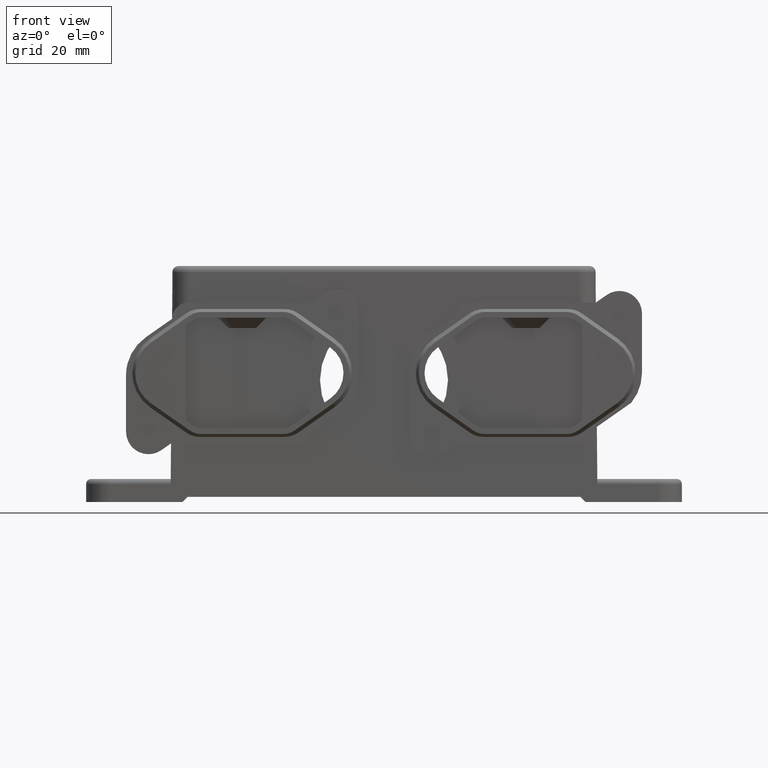
[diagram: clean part render]
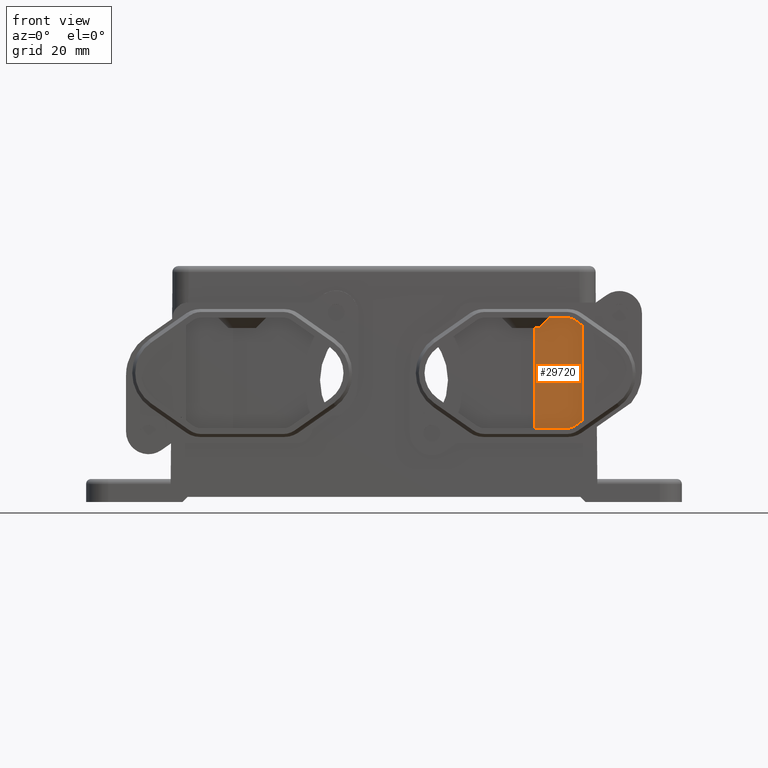
[diagram: same view with one face highlighted and labeled with its STEP entity id]
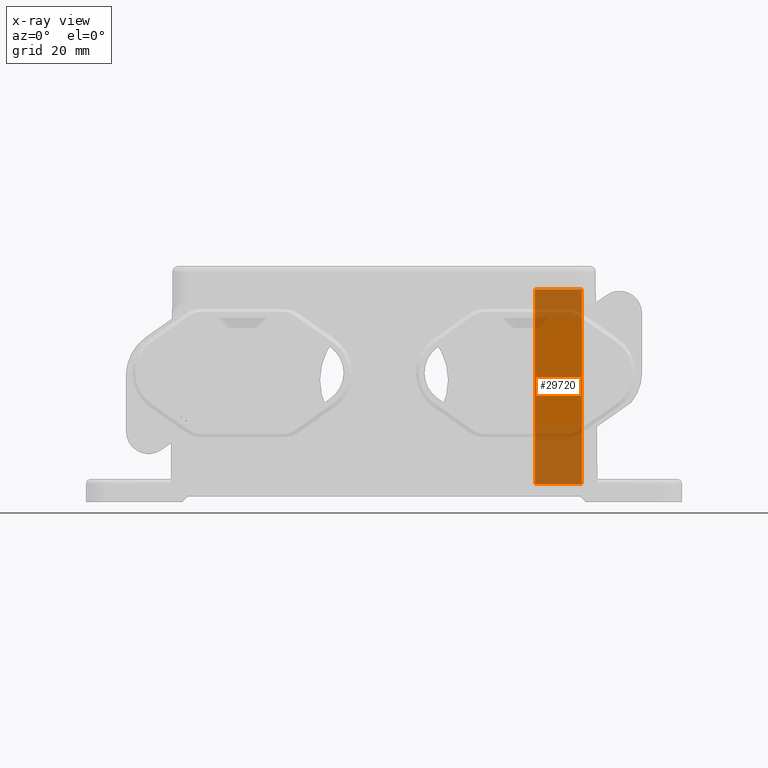
[diagram: x-ray of the same camera — body ghosted, the highlighted face saturated]
A machine part, front view. The second image highlights one B-rep face of the part: STEP entity #29720.
The next image is the same camera in x-ray: the body ghosted, the highlighted face saturated — about 45% of this face is hidden behind the body in this view.
In plain terms, the highlighted planar face has unit normal (0, 1, -0).
Its self-contained STEP definition (entity closure, byte-faithful):
#3870=CARTESIAN_POINT('',(-57.3105253629925,-56.4607824843596,
-21.549999322827));
#3880=VERTEX_POINT('',#3870);
#3910=CARTESIAN_POINT('',(0.,-56.4607824843596,-21.549999322827));
#3920=DIRECTION('',(1.,-6.4115777560777E-42,7.34694040268051E-40));
#3930=VECTOR('',#3920,1.);
#3940=LINE('',#3910,#3930);
#3950=CARTESIAN_POINT('',(-66.4640161101088,-56.4607824843596,
-21.549999322827));
#3960=VERTEX_POINT('',#3950);
#3970=EDGE_CURVE('',#3960,#3880,#3940,.T.);
#16510=CARTESIAN_POINT('',(0.,-56.4607824843596,-21.549999322827));
#16520=DIRECTION('',(-6.4115777560777E-42,-1.,-4.71054796610548E-81));
#16530=DIRECTION('',(-1.,6.4115777560777E-42,0.));
#16540=AXIS2_PLACEMENT_3D('',#16510,#16520,#16530);
#16550=PLANE('',#16540);
#29470=CARTESIAN_POINT('',(-66.4640161101088,-56.4607824843596,0.));
#29480=DIRECTION('',(7.34694040268051E-40,0.,-1.));
#29490=VECTOR('',#29480,1.);
#29500=LINE('',#29470,#29490);
#29510=CARTESIAN_POINT('',(-66.4640161101088,-56.4607824843596,
16.450000677173));
#29520=VERTEX_POINT('',#29510);
#29530=EDGE_CURVE('',#29520,#3960,#29500,.T.);
#29540=ORIENTED_EDGE('',*,*,#29530,.F.);
#29550=ORIENTED_EDGE('',*,*,#3970,.F.);
#29560=CARTESIAN_POINT('',(-57.3105253629925,-56.4607824843596,0.));
#29570=DIRECTION('',(-7.34694040268051E-40,0.,1.));
#29580=VECTOR('',#29570,1.);
#29590=LINE('',#29560,#29580);
#29600=CARTESIAN_POINT('',(-57.3105253629925,-56.4607824843596,
16.450000677173));
#29610=VERTEX_POINT('',#29600);
#29620=EDGE_CURVE('',#3880,#29610,#29590,.T.);
#29630=ORIENTED_EDGE('',*,*,#29620,.F.);
#29640=CARTESIAN_POINT('',(0.,-56.4607824843596,16.450000677173));
#29650=DIRECTION('',(-1.,6.4115777560777E-42,0.));
#29660=VECTOR('',#29650,1.);
#29670=LINE('',#29640,#29660);
#29680=EDGE_CURVE('',#29610,#29520,#29670,.T.);
#29690=ORIENTED_EDGE('',*,*,#29680,.F.);
#29700=EDGE_LOOP('',(#29690,#29630,#29550,#29540));
#29710=FACE_OUTER_BOUND('',#29700,.T.);
#29720=ADVANCED_FACE('',(#29710),#16550,.F.);